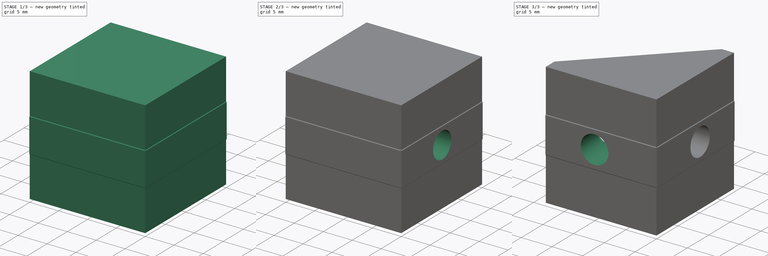
[diagram: build sequence overview — one tinted view per stage of 3, left to right]
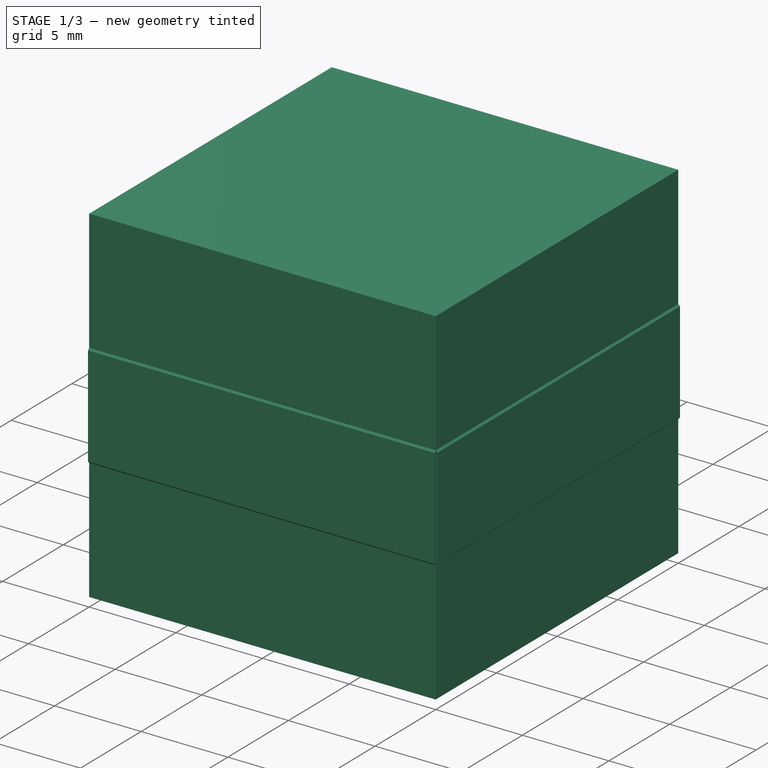
[diagram: stage 1 of 3 — iso view after this stage's code; geometry added in this stage tinted green]
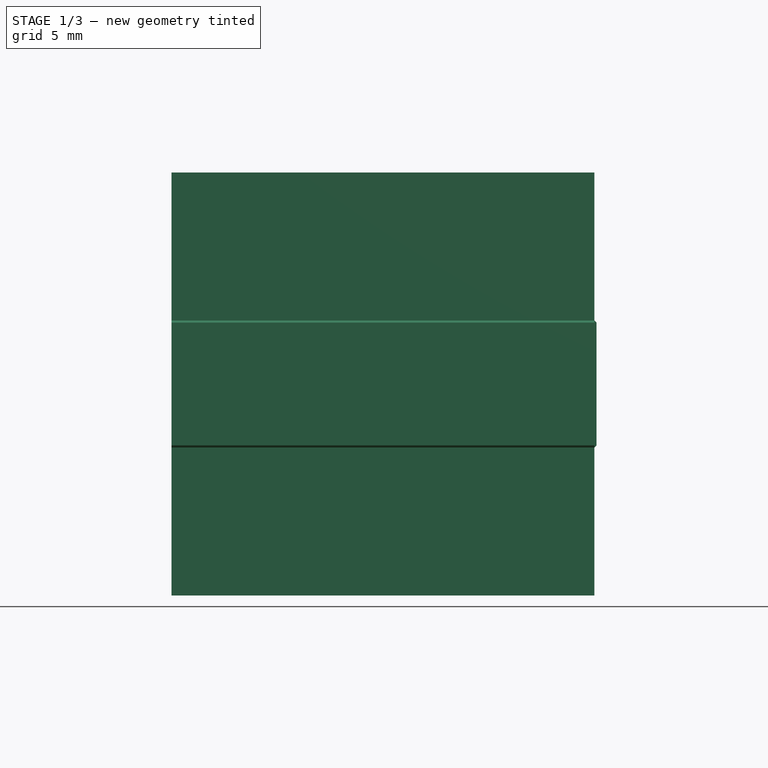
[diagram: stage 1 of 3 — front view after this stage's code; geometry added in this stage tinted green]
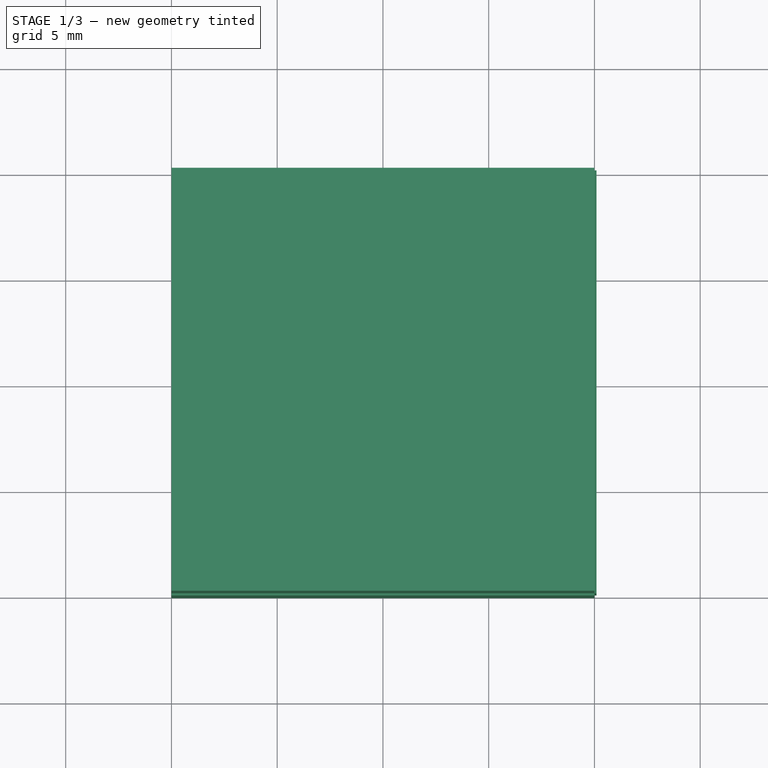
[diagram: stage 1 of 3 — top view after this stage's code; geometry added in this stage tinted green]
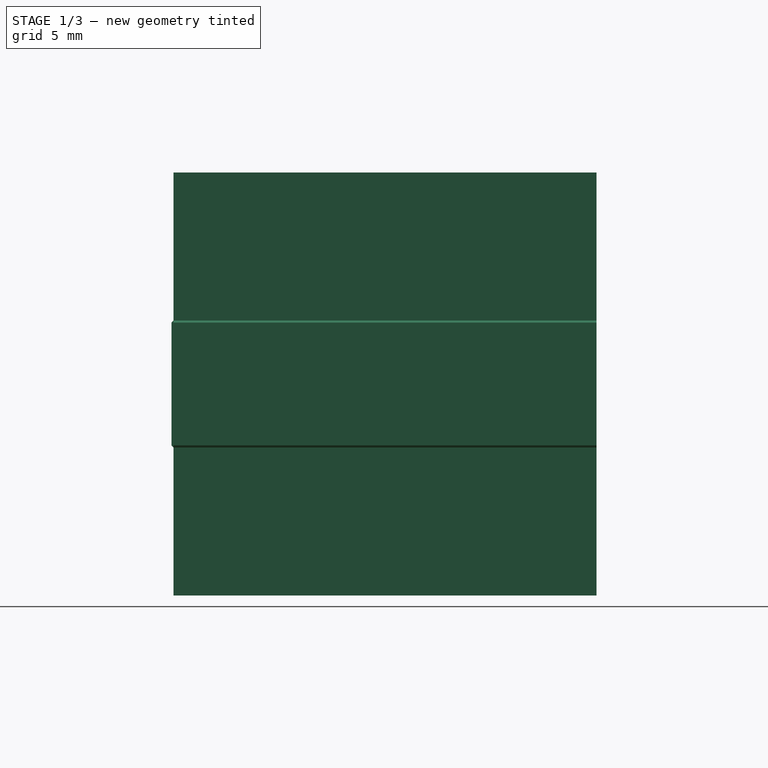
[diagram: stage 1 of 3 — right view after this stage's code; geometry added in this stage tinted green]
FCSTD DOCUMENT  (FreeCAD 0.20R29410 (Git))
Label: 2020_angle_coupler
License: All rights reserved
LicenseURL: http://en.wikipedia.org/wiki/All_rights_reserved
objects: Sketcher::SketchObject×8, PartDesign::Plane×5, PartDesign::Pocket×5, PartDesign::Pad×3, Spreadsheet::Sheet×1, PartDesign::Body×1
note: 30 computed .brp shape members not serialized (recipe doc carries the construction recipe); baked Part::Feature solids carry a one-line shape summary decoded from their .brp

FEATURE [Sketcher::SketchObject] Sketch
  FullyConstrained = true
  MapMode = 5
  Support = -> [XY_Plane]
  expr: Constraints[10] = <<Spreadsheet>>.block_size
  sketch-geometry (4):
    g0: LineSegment StartX=-10 StartY=10 StartZ=0 EndX=10 EndY=10 EndZ=0
    g1: LineSegment StartX=10 StartY=10 StartZ=0 EndX=10 EndY=-10 EndZ=0
    g2: LineSegment StartX=10 StartY=-10 StartZ=0 EndX=-10 EndY=-10 EndZ=0
    g3: LineSegment StartX=-10 StartY=-10 StartZ=0 EndX=-10 EndY=10 EndZ=0
  constraints (11):
    c: Coincident(g0,g1)
    c: Coincident(g1,g2)
    c: Coincident(g2,g3)
    c: Coincident(g3,g0)
    c: Horizontal(g0)
    c: Horizontal(g2)
    c: Vertical(g1)
    c: Vertical(g3)
    c: Equal(g1,g0)
    c: Symmetric(g0,g2,g-1)
    c: Distance(g1) = 20
FEATURE [Spreadsheet::Sheet] Spreadsheet
  cells = A1=Block Size; B1=screw hole size; C1=screw hole length; D1=screw head size; A2(block_size)=20; B2(screw_hole_size)=4.5; C2(screw_hole_length)=4; D2(screw_head_size)=8; A3=guide width; B3=guide depth; A4(guide_width)=6; B4(guide_depth)=0.1
FEATURE [PartDesign::Pad] Pad  label="block body"
  Direction = (0,0,1)
  Length = 20
  Length2 = 10
  Profile = -> Sketch
  ReferenceAxis = -> Sketch [N_Axis]
  Type = 0
FEATURE [PartDesign::Plane] DatumPlane  label="front left plane"
  AttachmentOffset = pos=(0,0,10) rot=(0,0,1;0rad)
  Length = 60
  MapMode = 5
  Placement = pos=(0,-10,-2.2e-15) rot=(1,0,0;1.5708rad)
  ResizeMode = 0
  Support = -> [XZ_Plane]
  Width = 60
  expr: .AttachmentOffset.Base.z = <<Spreadsheet>>.block_size / 2
FEATURE [PartDesign::Plane] DatumPlane001  label="front right plane"
  AttachmentOffset = pos=(0,0,10) rot=(0,0,1;0rad)
  Length = 60
  MapMode = 5
  Placement = pos=(10,-2.2e-15,2.2e-15) rot=(0.57735,0.57735,0.57735;2.0944rad)
  ResizeMode = 0
  Support = -> [YZ_Plane]
  Width = 60
  expr: .AttachmentOffset.Base.z = <<Spreadsheet>>.block_size / 2
FEATURE [Sketcher::SketchObject] Sketch001
  FullyConstrained = true
  MapMode = 5
  Placement = pos=(0,-10,-2.2e-15) rot=(1,0,0;1.5708rad)
  Support = -> [DatumPlane]
  expr: Constraints[13] = <<Spreadsheet>>.guide_width
  expr: Constraints[18] = <<Spreadsheet>>.guide_depth
  expr: Constraints[4] = <<Spreadsheet>>.block_size / 2
  sketch-geometry (7):
    g0: LineSegment StartX=0 StartY=0 StartZ=0 EndX=10 EndY=0 EndZ=0
    g1: LineSegment StartX=10 StartY=0 StartZ=0 EndX=10 EndY=10 EndZ=0
    g2: LineSegment StartX=10 StartY=13 StartZ=0 EndX=10.1 EndY=12.9 EndZ=0
    g3: LineSegment StartX=10.1 StartY=12.9 StartZ=0 EndX=10.1 EndY=7.1 EndZ=0
    g4: LineSegment StartX=10.1 StartY=7.1 StartZ=0 EndX=10 EndY=7 EndZ=0
    g5: LineSegment StartX=10 StartY=13 StartZ=0 EndX=10 EndY=7 EndZ=0
    g6: LineSegment StartX=10.1 StartY=12.9 StartZ=0 EndX=10 EndY=12.9 EndZ=0
  constraints (20):
    c: Coincident(g-1,g0)
    c: PointOnObject(g0,g-1)
    c: Coincident(g0,g1)
    c: Vertical(g1)
    c: Distance(g0) = 10
    c: Distance(g1) = 10
    c: Coincident(g2,g3)
    c: Vertical(g3)
    c: Coincident(g3,g4)
    c: PointOnObject(g4,g1)
    c: Coincident(g5,g2)
    c: Coincident(g5,g4)
    c: Symmetric(g2,g4,g1)
    c: Distance(g5) = 6
    c: Angle(g5,g2) = 0.785398
    c: Coincident(g6,g2)
    c: PointOnObject(g6,g5)
    c: Horizontal(g6)
    c: Distance(g6) = 0.1
    c: Angle(g4,g5) = 0.785398
FEATURE [PartDesign::Pad] Pad001  label="right guide"
  BaseFeature = -> Pad
  Direction = (0,-1,-2e-16)
  Length = 20
  Length2 = 10
  Profile = -> Sketch001
  ReferenceAxis = -> Sketch001 [N_Axis]
  Reversed = true
  Type = 0
  expr: Length = <<Spreadsheet>>.block_size
FEATURE [Sketcher::SketchObject] Sketch002
  FullyConstrained = true
  MapMode = 5
  Placement = pos=(10,-2.2e-15,2.2e-15) rot=(0.57735,0.57735,0.57735;2.0944rad)
  Support = -> [DatumPlane001]
  expr: Constraints[15] = <<Spreadsheet>>.guide_width
  expr: Constraints[19] = <<Spreadsheet>>.guide_depth
  expr: Constraints[4] = <<Spreadsheet>>.block_size / 2
  sketch-geometry (7):
    g0: LineSegment StartX=0 StartY=0 StartZ=0 EndX=-10 EndY=0 EndZ=0
    g1: LineSegment StartX=-10 StartY=0 StartZ=0 EndX=-10 EndY=10 EndZ=0
    g2: LineSegment StartX=-10 StartY=13 StartZ=0 EndX=-10 EndY=7 EndZ=0
    g3: LineSegment StartX=-10 StartY=7 StartZ=0 EndX=-10.1 EndY=7.1 EndZ=0
    g4: LineSegment StartX=-10.1 StartY=7.1 StartZ=0 EndX=-10.1 EndY=12.9 EndZ=0
    g5: LineSegment StartX=-10.1 StartY=12.9 StartZ=0 EndX=-10 EndY=13 EndZ=0
    g6: LineSegment StartX=-10.1 StartY=12.9 StartZ=0 EndX=-10 EndY=12.9 EndZ=0
  constraints (20):
    c: Coincident(g-1,g0)
    c: PointOnObject(g0,g-1)
    c: Coincident(g0,g1)
    c: Vertical(g1)
    c: Distance(g0) = 10
    c: Distance(g1) = 10
    c: PointOnObject(g2,g1)
    c: Coincident(g2,g3)
    c: Coincident(g3,g4)
    c: Vertical(g4)
    c: Coincident(g4,g5)
    c: Coincident(g5,g2)
    c: Symmetric(g2,g2,g1)
    c: Angle(g5,g2) = 0.785398
    c: Angle(g2,g3) = 0.785398
    c: Distance(g2) = 6
    c: Coincident(g6,g4)
    c: PointOnObject(g6,g2)
    c: Horizontal(g6)
    c: Distance(g6) = 0.1
FEATURE [PartDesign::Pad] Pad002  label="left guide"
  BaseFeature = -> Pad001
  Direction = (1,-1e-16,1e-16)
  Length = 20
  Length2 = 10
  Profile = -> Sketch002
  ReferenceAxis = -> Sketch002 [N_Axis]
  Reversed = true
  Type = 0
  expr: Length = <<Spreadsheet>>.block_size
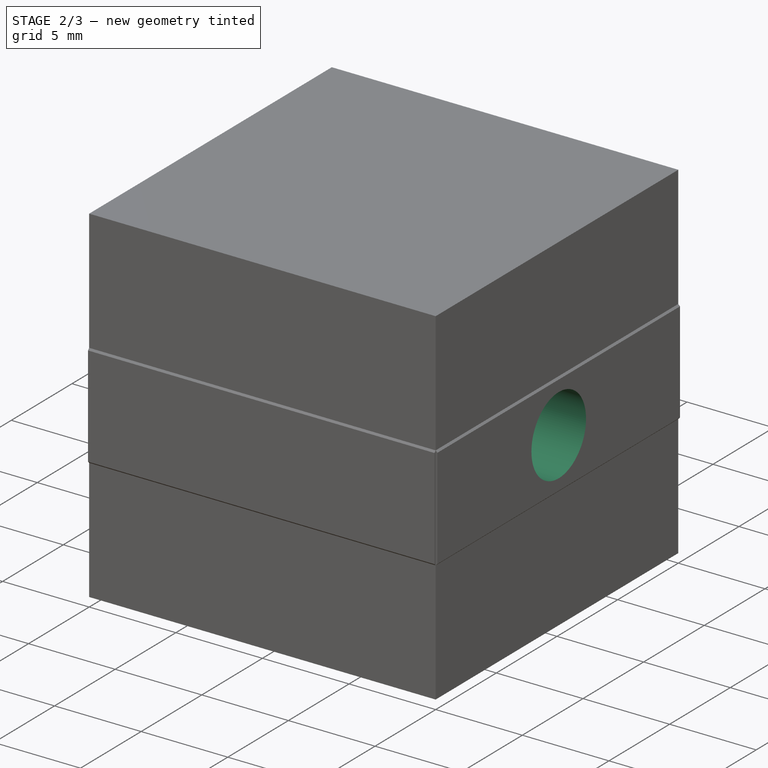
[diagram: stage 2 of 3 — iso view after this stage's code; geometry added in this stage tinted green]
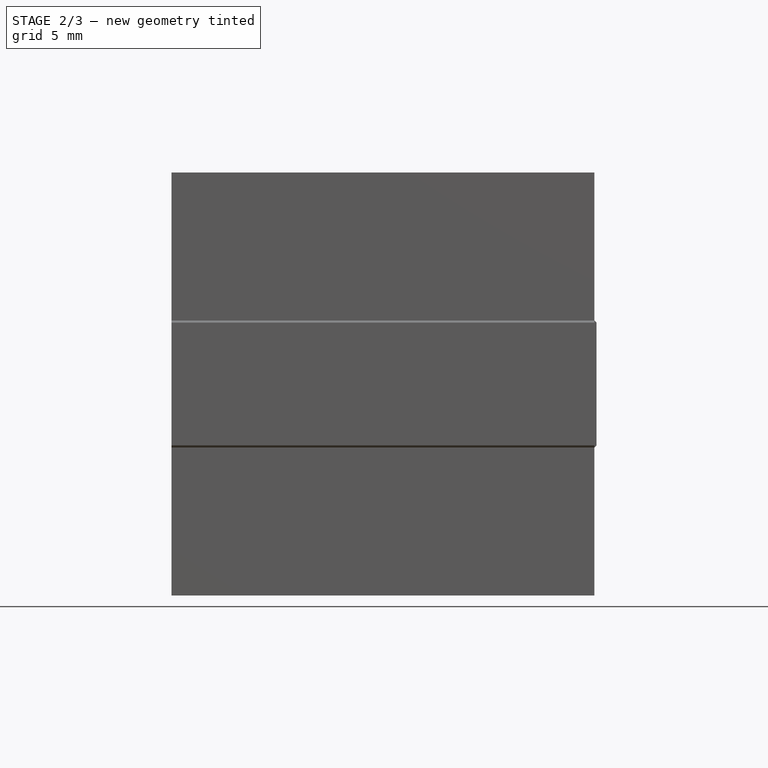
[diagram: stage 2 of 3 — front view after this stage's code; geometry added in this stage tinted green]
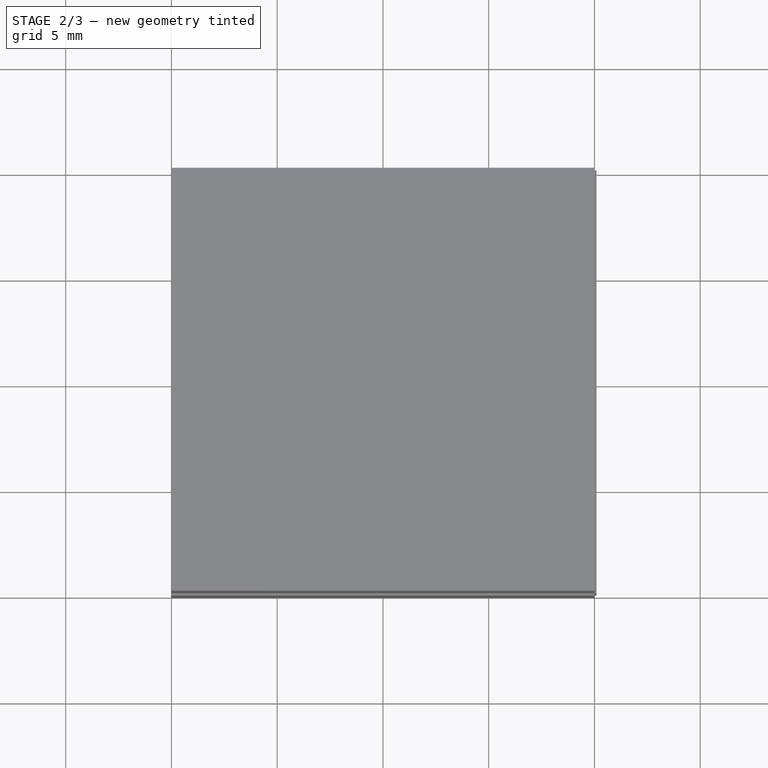
[diagram: stage 2 of 3 — top view after this stage's code; geometry added in this stage tinted green]
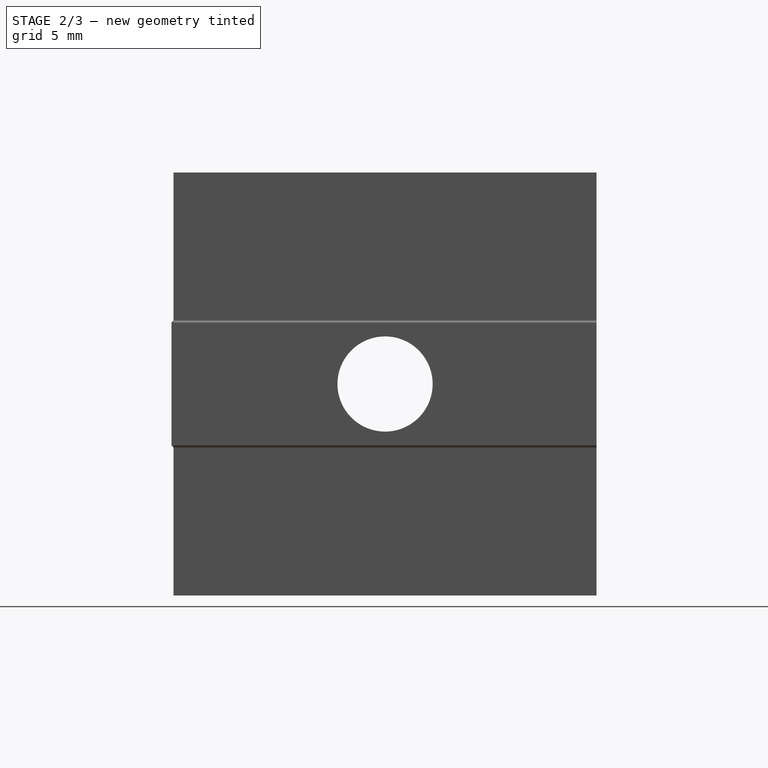
[diagram: stage 2 of 3 — right view after this stage's code; geometry added in this stage tinted green]
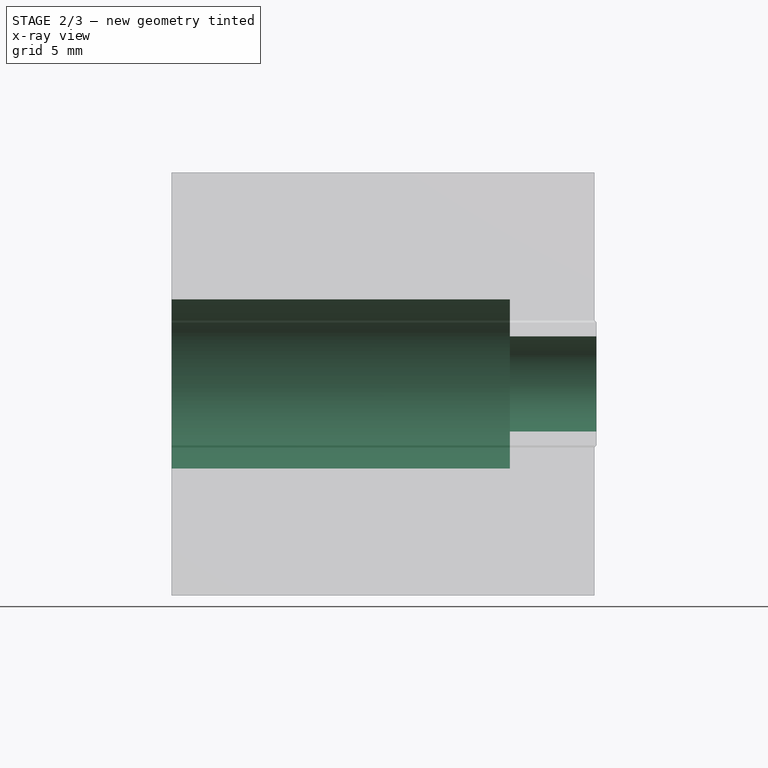
[diagram: stage 2 of 3 — x-ray composite at the front view; earlier geometry ghosted, this stage's added geometry solid]
FEATURE [PartDesign::Plane] DatumPlane002  label="top_plane"
  AttachmentOffset = pos=(0,0,20) rot=(0,0,1;0rad)
  Length = 60
  MapMode = 5
  Placement = pos=(0,0,20) rot=(0,0,1;0rad)
  ResizeMode = 0
  Support = -> [XY_Plane]
  Width = 60
FEATURE [PartDesign::Plane] DatumPlane003  label="back left plane"
  AttachmentOffset = pos=(0,0,10) rot=(0,0,1;0rad)
  Length = 60
  MapMode = 5
  Placement = pos=(-10,2.2e-15,-2.2e-15) rot=(-0.57735,0.57735,0.57735;4.18879rad)
  ResizeMode = 0
  Support = -> [YZ_Plane]
  Width = 60
  expr: .AttachmentOffset.Base.z = <<Spreadsheet>>.block_size / 2
FEATURE [Sketcher::SketchObject] Sketch004
  FullyConstrained = true
  MapMode = 5
  Placement = pos=(-10,2.2e-15,-2.2e-15) rot=(-0.57735,0.57735,0.57735;4.18879rad)
  Support = -> [DatumPlane003]
  expr: Constraints[10] = <<Spreadsheet>>.block_size / 2
  expr: Constraints[1] = <<Spreadsheet>>.screw_hole_size
  sketch-geometry (6):
    g0: Circle CenterX=20 CenterY=10 CenterZ=0 NormalX=0 NormalY=0 NormalZ=1 AngleXU=0 Radius=2.25
    g1: Circle CenterX=0 CenterY=10 CenterZ=0 NormalX=0 NormalY=0 NormalZ=1 AngleXU=0 Radius=2.25
    g2: LineSegment StartX=0 StartY=0 StartZ=0 EndX=-10 EndY=0 EndZ=0
    g3: LineSegment StartX=-10 StartY=0 StartZ=0 EndX=-10 EndY=10 EndZ=0
    g4: LineSegment StartX=-10 StartY=10 StartZ=0 EndX=0 EndY=10 EndZ=0
    g5: LineSegment StartX=0 StartY=10 StartZ=0 EndX=20 EndY=10 EndZ=0
  constraints (16):
    c: Equal(g0,g1)
    c: Diameter(g1) = 4.5
    c: Horizontal(g2)
    c: Coincident(g2,g3)
    c: Vertical(g3)
    c: Coincident(g3,g4)
    c: Horizontal(g4)
    c: Coincident(g4,g5)
    c: Horizontal(g5)
    c: Coincident(g2,g-1)
    c: Distance(g2) = 10
    c: Distance(g3) = 10
    c: Distance(g4) = 10
    c: Distance(g5) = 20
    c: Coincident(g0,g5)
    c: Coincident(g1,g4)
FEATURE [PartDesign::Pocket] Pocket001  label="left screw holes"
  BaseFeature = -> Pad002
  Direction = (1,-4e-16,2e-16)
  Length = 20.1
  Length2 = 5
  Profile = -> Sketch004
  ReferenceAxis = -> Sketch004 [N_Axis]
  Type = 0
  expr: Length = <<Spreadsheet>>.block_size + <<Spreadsheet>>.guide_depth
FEATURE [Sketcher::SketchObject] Sketch005
  FullyConstrained = true
  MapMode = 5
  Placement = pos=(-10,2.2e-15,-2.2e-15) rot=(-0.57735,0.57735,0.57735;4.18879rad)
  Support = -> [DatumPlane003]
  expr: Constraints[15] = <<Spreadsheet>>.screw_head_size
  expr: Constraints[8] = <<Spreadsheet>>.block_size / 2
  sketch-geometry (6):
    g0: LineSegment StartX=0 StartY=0 StartZ=0 EndX=-10 EndY=0 EndZ=0
    g1: LineSegment StartX=-10 StartY=0 StartZ=0 EndX=-10 EndY=10 EndZ=0
    g2: LineSegment StartX=-10 StartY=10 StartZ=0 EndX=0 EndY=10 EndZ=0
    g3: LineSegment StartX=0 StartY=10 StartZ=0 EndX=20 EndY=10 EndZ=0
    g4: Circle CenterX=20 CenterY=10 CenterZ=0 NormalX=0 NormalY=0 NormalZ=1 AngleXU=0 Radius=4
    g5: Circle CenterX=0 CenterY=10 CenterZ=0 NormalX=0 NormalY=0 NormalZ=1 AngleXU=0 Radius=4
  constraints (16):
    c: Horizontal(g0)
    c: Coincident(g0,g1)
    c: Vertical(g1)
    c: Coincident(g1,g2)
    c: Horizontal(g2)
    c: Coincident(g2,g3)
    c: Horizontal(g3)
    c: Coincident(g0,g-1)
    c: Distance(g0) = 10
    c: Distance(g1) = 10
    c: Distance(g2) = 10
    c: Distance(g3) = 20
    c: Coincident(g4,g3)
    c: Coincident(g5,g2)
    c: Equal(g4,g5)
    c: Diameter(g5) = 8
FEATURE [PartDesign::Pocket] Pocket002  label="left screw head holes"
  BaseFeature = -> Pocket001
  Direction = (1,-4e-16,2e-16)
  Length = 16
  Length2 = 5
  Profile = -> Sketch005
  ReferenceAxis = -> Sketch005 [N_Axis]
  Type = 0
  expr: Length = <<Spreadsheet>>.block_size - <<Spreadsheet>>.screw_hole_length
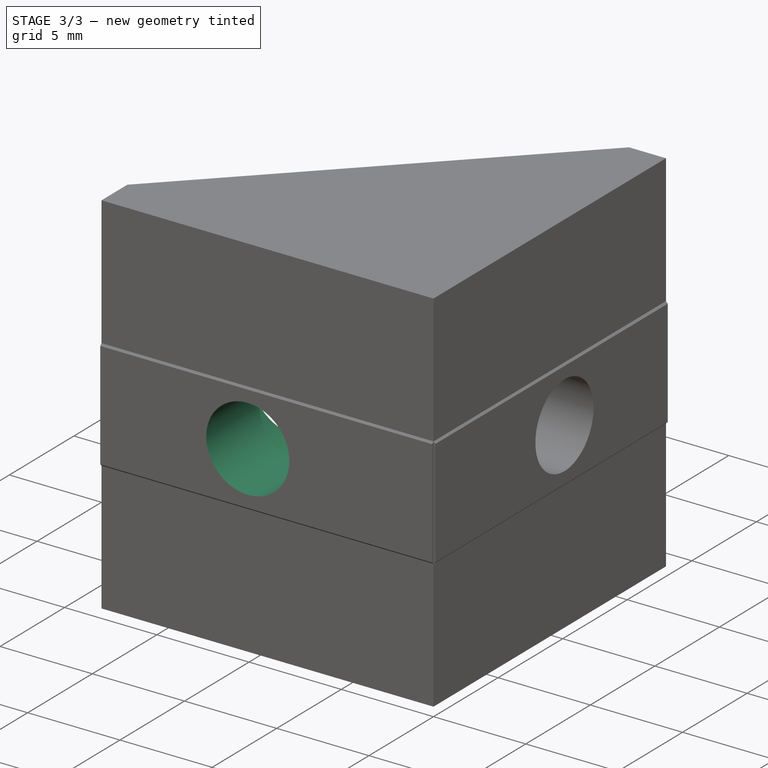
[diagram: stage 3 of 3 — iso view after this stage's code; geometry added in this stage tinted green]
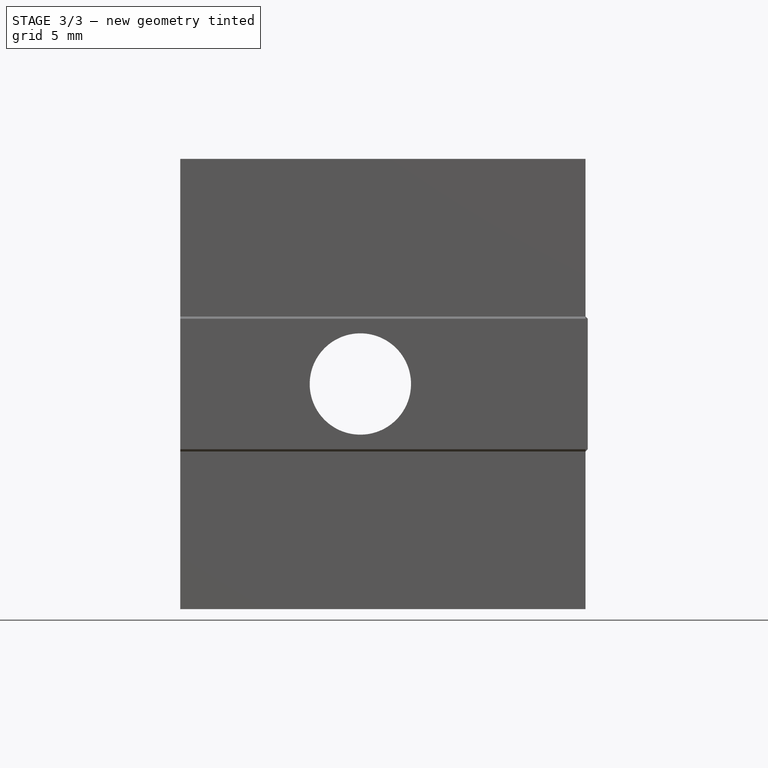
[diagram: stage 3 of 3 — front view after this stage's code; geometry added in this stage tinted green]
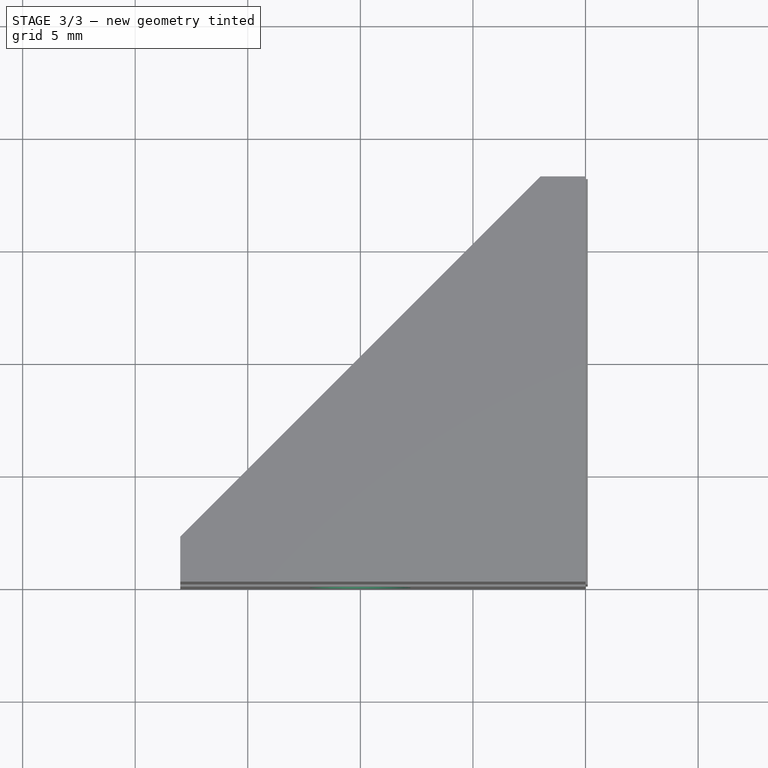
[diagram: stage 3 of 3 — top view after this stage's code; geometry added in this stage tinted green]
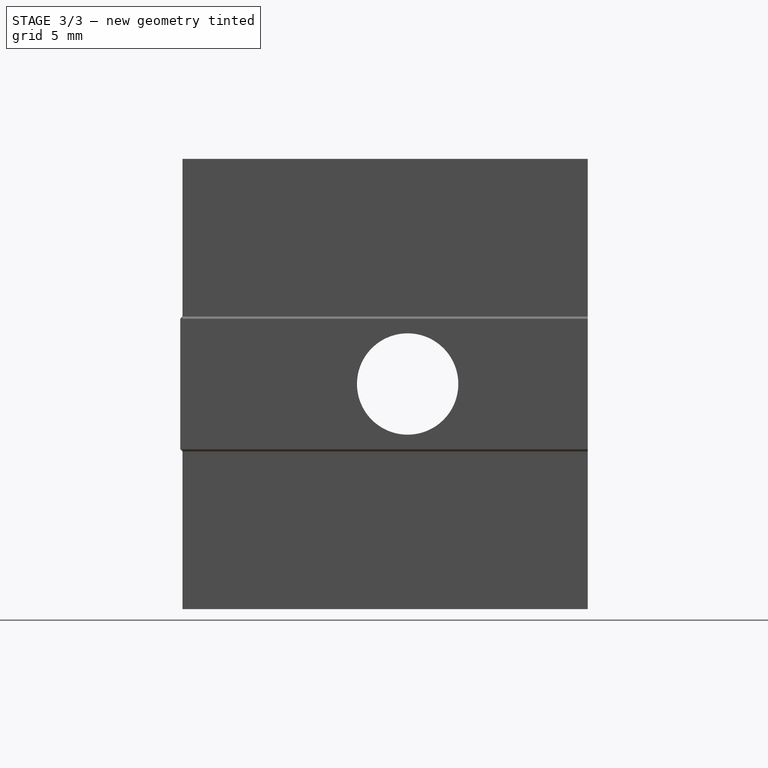
[diagram: stage 3 of 3 — right view after this stage's code; geometry added in this stage tinted green]
FEATURE [PartDesign::Plane] DatumPlane004  label="back right plane"
  AttachmentOffset = pos=(0,0,10) rot=(0,0,1;0rad)
  Length = 60
  MapMode = 5
  Placement = pos=(0,10,2.2e-15) rot=(0,0.707107,0.707107;3.14159rad)
  ResizeMode = 0
  Support = -> [XZ_Plane]
  Width = 60
  expr: .AttachmentOffset.Base.z = <<Spreadsheet>>.block_size / 2
FEATURE [Sketcher::SketchObject] Sketch006
  FullyConstrained = true
  MapMode = 5
  Placement = pos=(0,10,2.2e-15) rot=(0,0.707107,0.707107;3.14159rad)
  Support = -> [DatumPlane004]
  expr: Constraints[15] = <<Spreadsheet>>.screw_hole_size
  expr: Constraints[8] = <<Spreadsheet>>.block_size / 2
  sketch-geometry (6):
    g0: LineSegment StartX=0 StartY=0 StartZ=0 EndX=-10 EndY=0 EndZ=0
    g1: LineSegment StartX=-10 StartY=0 StartZ=0 EndX=-10 EndY=10 EndZ=0
    g2: LineSegment StartX=-10 StartY=10 StartZ=0 EndX=0 EndY=10 EndZ=0
    g3: LineSegment StartX=0 StartY=10 StartZ=0 EndX=20 EndY=10 EndZ=0
    g4: Circle CenterX=0 CenterY=10 CenterZ=0 NormalX=0 NormalY=0 NormalZ=1 AngleXU=0 Radius=2.25
    g5: Circle CenterX=20 CenterY=10 CenterZ=0 NormalX=0 NormalY=0 NormalZ=1 AngleXU=0 Radius=2.25
  constraints (16):
    c: Horizontal(g0)
    c: Coincident(g0,g1)
    c: Vertical(g1)
    c: Coincident(g1,g2)
    c: Horizontal(g2)
    c: Coincident(g2,g3)
    c: Horizontal(g3)
    c: Coincident(g0,g-1)
    c: Distance(g0) = 10
    c: Distance(g1) = 10
    c: Distance(g3) = 20
    c: Distance(g2) = 10
    c: Coincident(g4,g2)
    c: Coincident(g5,g3)
    c: Equal(g5,g4)
    c: Diameter(g4) = 4.5
FEATURE [PartDesign::Pocket] Pocket003  label="right screw holes"
  BaseFeature = -> Pocket002
  Direction = (0,-1,-2e-16)
  Length = 20.1
  Length2 = 5
  Profile = -> Sketch006
  ReferenceAxis = -> Sketch006 [N_Axis]
  Type = 0
  expr: Length = <<Spreadsheet>>.block_size + <<Spreadsheet>>.guide_depth
FEATURE [Sketcher::SketchObject] Sketch007
  FullyConstrained = true
  MapMode = 5
  Placement = pos=(0,10,2.2e-15) rot=(0,0.707107,0.707107;3.14159rad)
  Support = -> [DatumPlane004]
  expr: Constraints[15] = <<Spreadsheet>>.screw_head_size
  expr: Constraints[8] = <<Spreadsheet>>.block_size / 2
  sketch-geometry (6):
    g0: LineSegment StartX=0 StartY=0 StartZ=0 EndX=-10 EndY=0 EndZ=0
    g1: LineSegment StartX=-10 StartY=0 StartZ=0 EndX=-10 EndY=10 EndZ=0
    g2: LineSegment StartX=-10 StartY=10 StartZ=0 EndX=0 EndY=10 EndZ=0
    g3: LineSegment StartX=0 StartY=10 StartZ=0 EndX=20 EndY=10 EndZ=0
    g4: Circle CenterX=0 CenterY=10 CenterZ=0 NormalX=0 NormalY=0 NormalZ=1 AngleXU=0 Radius=4
    g5: Circle CenterX=20 CenterY=10 CenterZ=0 NormalX=0 NormalY=0 NormalZ=1 AngleXU=0 Radius=4
  constraints (16):
    c: Horizontal(g0)
    c: Coincident(g0,g1)
    c: Vertical(g1)
    c: Coincident(g1,g2)
    c: Horizontal(g2)
    c: Coincident(g2,g3)
    c: Horizontal(g3)
    c: Coincident(g0,g-1)
    c: Distance(g0) = 10
    c: Distance(g1) = 10
    c: Distance(g2) = 10
    c: Distance(g3) = 20
    c: Coincident(g4,g2)
    c: Coincident(g5,g3)
    c: Equal(g5,g4)
    c: Diameter(g4) = 8
FEATURE [PartDesign::Pocket] Pocket004  label="right screw head holes"
  BaseFeature = -> Pocket003
  Direction = (0,-1,-2e-16)
  Length = 16
  Length2 = 5
  Profile = -> Sketch007
  ReferenceAxis = -> Sketch007 [N_Axis]
  Type = 0
  expr: Length = <<Spreadsheet>>.block_size - <<Spreadsheet>>.screw_hole_length
FEATURE [Sketcher::SketchObject] Sketch008
  FullyConstrained = true
  MapMode = 5
  Placement = pos=(0,0,20) rot=(0,0,1;0rad)
  Support = -> [DatumPlane002]
  expr: Constraints[20] = <<Spreadsheet>>.block_size / 2 + <<Spreadsheet>>.guide_depth
  expr: Constraints[39] = <<Spreadsheet>>.guide_depth + 2
  sketch-geometry (15):
    g0: LineSegment StartX=0 StartY=0 StartZ=0 EndX=-10.1 EndY=0 EndZ=0
    g1: LineSegment StartX=-10.1 StartY=0 StartZ=0 EndX=-10.1 EndY=-10.1 EndZ=0
    g2: LineSegment StartX=-10.1 StartY=-10.1 StartZ=0 EndX=0 EndY=-10.1 EndZ=0
    g3: LineSegment StartX=0 StartY=-10.1 StartZ=0 EndX=0 EndY=0 EndZ=0
    g4: LineSegment StartX=0 StartY=0 StartZ=0 EndX=10.1 EndY=0 EndZ=0
    g5: LineSegment StartX=10.1 StartY=0 StartZ=0 EndX=10.1 EndY=10.1 EndZ=0
    g6: LineSegment StartX=10.1 StartY=10.1 StartZ=0 EndX=0 EndY=10.1 EndZ=0
    g7: LineSegment StartX=0 StartY=10.1 StartZ=0 EndX=0 EndY=0 EndZ=0
    g8: LineSegment StartX=10.1 StartY=10.1 StartZ=0 EndX=-10.1 EndY=10.1 EndZ=0
    g9: LineSegment StartX=-10.1 StartY=10.1 StartZ=0 EndX=-10.1 EndY=-10.1 EndZ=0
    g10: LineSegment StartX=-10.1 StartY=-10.1 StartZ=0 EndX=-8 EndY=-10.1 EndZ=0
    g11: LineSegment StartX=-8 StartY=-10.1 StartZ=0 EndX=-8 EndY=-8 EndZ=0
    g12: LineSegment StartX=-8 StartY=-8 StartZ=0 EndX=8 EndY=8 EndZ=0
    g13: LineSegment StartX=8 StartY=8 StartZ=0 EndX=10.1 EndY=8 EndZ=0
    g14: LineSegment StartX=10.1 StartY=8 StartZ=0 EndX=10.1 EndY=10.1 EndZ=0
  constraints (40):
    c: Coincident(g0,g1)
    c: Coincident(g1,g2)
    c: Coincident(g2,g3)
    c: Coincident(g3,g0)
    c: Horizontal(g0)
    c: Horizontal(g2)
    c: Vertical(g1)
    c: Vertical(g3)
    c: Coincident(g0,g-1)
    c: Coincident(g4,g5)
    c: Coincident(g5,g6)
    c: Coincident(g6,g7)
    c: Coincident(g7,g4)
    c: Horizontal(g4)
    c: Horizontal(g6)
    c: Vertical(g5)
    c: Vertical(g7)
    c: Coincident(g4,g0)
    c: Equal(g6,g0)
    c: Equal(g7,g1)
    c: Distance(g5) = 10.1
    c: Equal(g6,g7)
    c: Coincident(g5,g8)
    c: Horizontal(g8)
    c: Coincident(g8,g9)
    c: Coincident(g9,g1)
    c: Vertical(g9)
    c: Coincident(g9,g10)
    c: Coincident(g10,g11)
    c: Coincident(g11,g12)
    c: Coincident(g12,g13)
    c: Coincident(g13,g14)
    c: Coincident(g14,g8)
    c: Symmetric(g12,g11,g0)
    c: PointOnObject(g13,g5)
    c: PointOnObject(g10,g2)
    c: Equal(g14,g13)
    c: Equal(g13,g11)
    c: Equal(g11,g10)
    c: Distance(g14) = 2.1
FEATURE [PartDesign::Pocket] Pocket  label="block cutout"
  BaseFeature = -> Pocket004
  Direction = (0,0,-1)
  Length = 20
  Length2 = 5
  Profile = -> Sketch008
  ReferenceAxis = -> Sketch008 [N_Axis]
  Type = 0
  expr: Length = 20
FEATURE [PartDesign::Body] Body
  Group = -> [Sketch,Pad,DatumPlane,DatumPlane001,Sketch001,Pad001,Sketch002,Pad002,DatumPlane002,DatumPlane003,Sketch004,Pocket001,Sketch005,Pocket002,DatumPlane004,Sketch006,Pocket003,Sketch007,Pocket004,Sketch008,Pocket]
  Origin = -> Origin
  Tip = -> Pocket
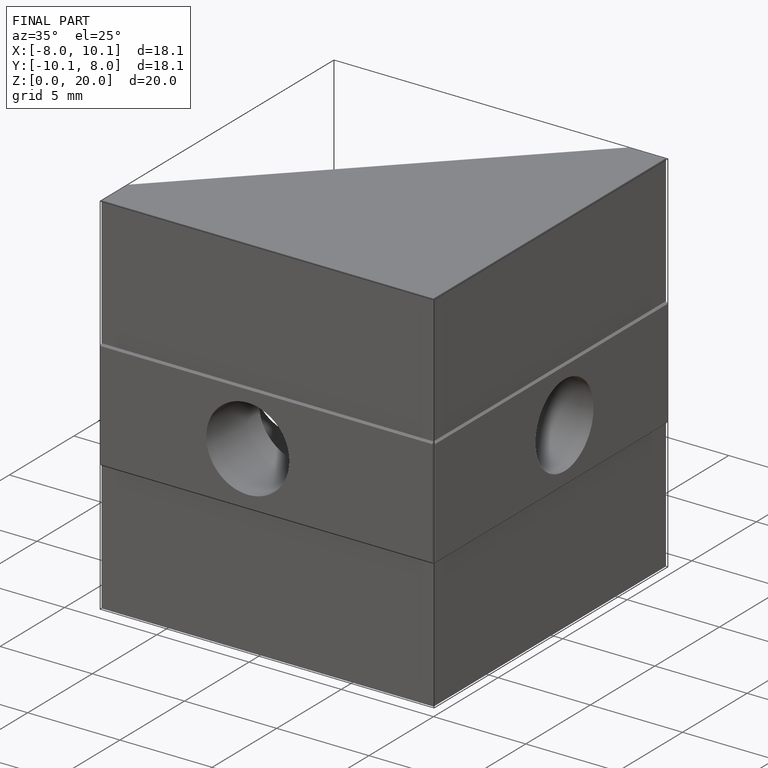
[diagram: finished part — iso view with bounding-box wireframe]
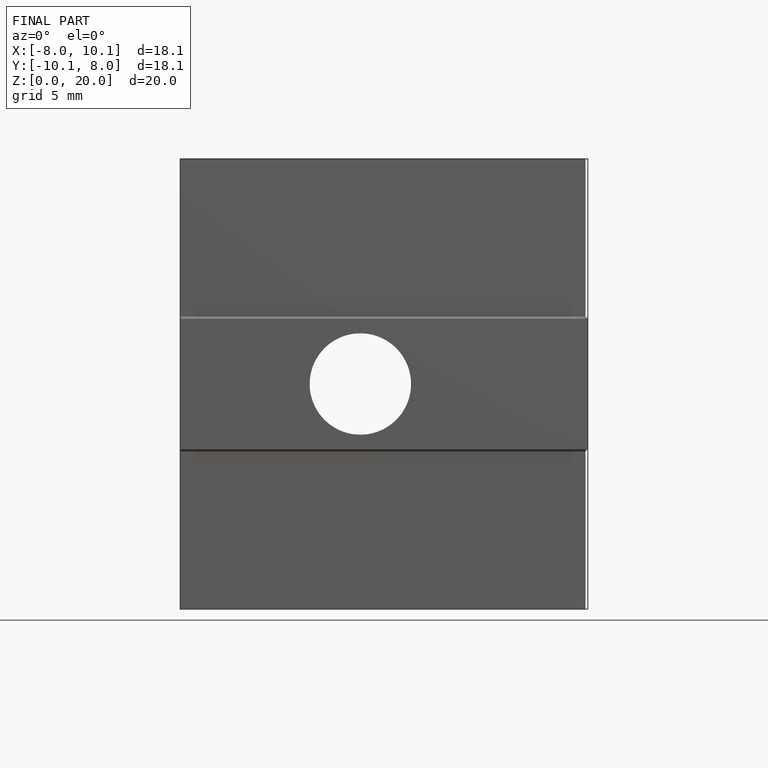
[diagram: finished part — front view with bounding-box wireframe]
